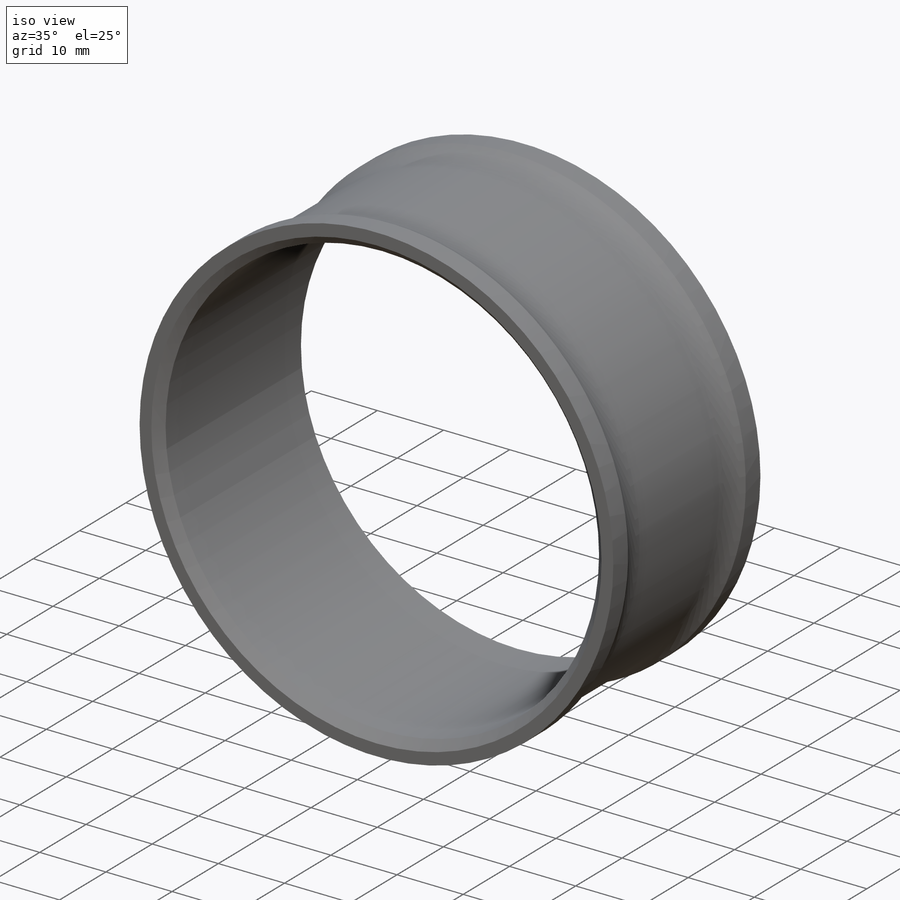
[diagram: iso view]
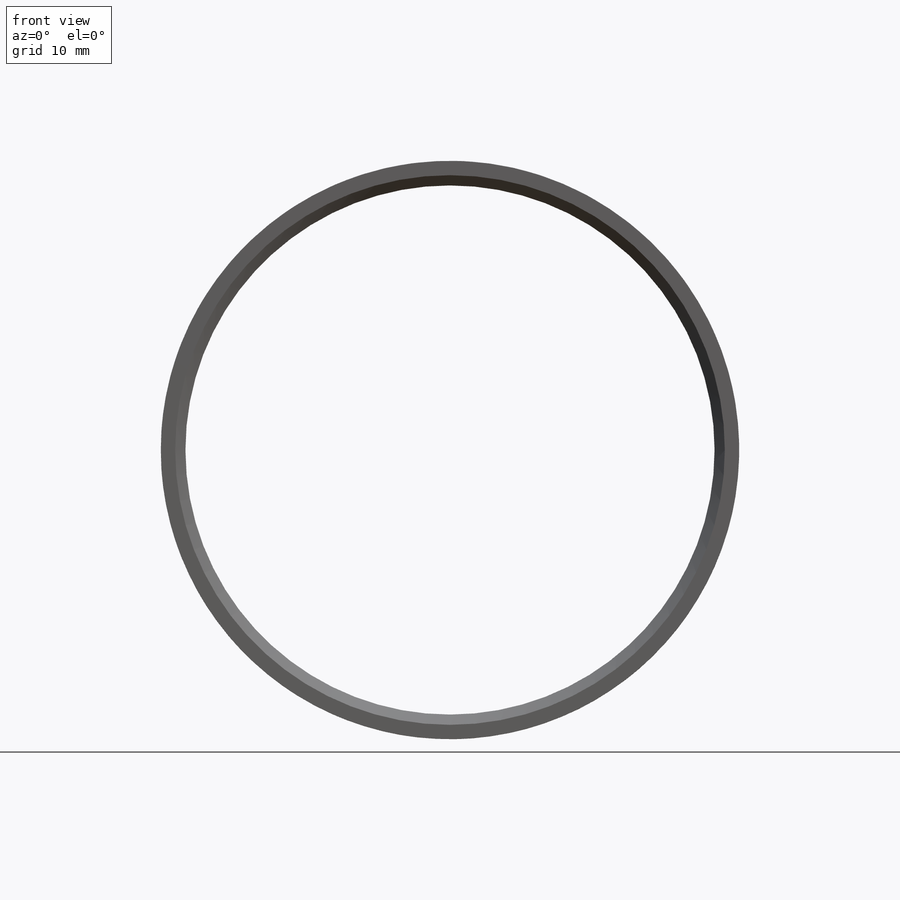
[diagram: front view]
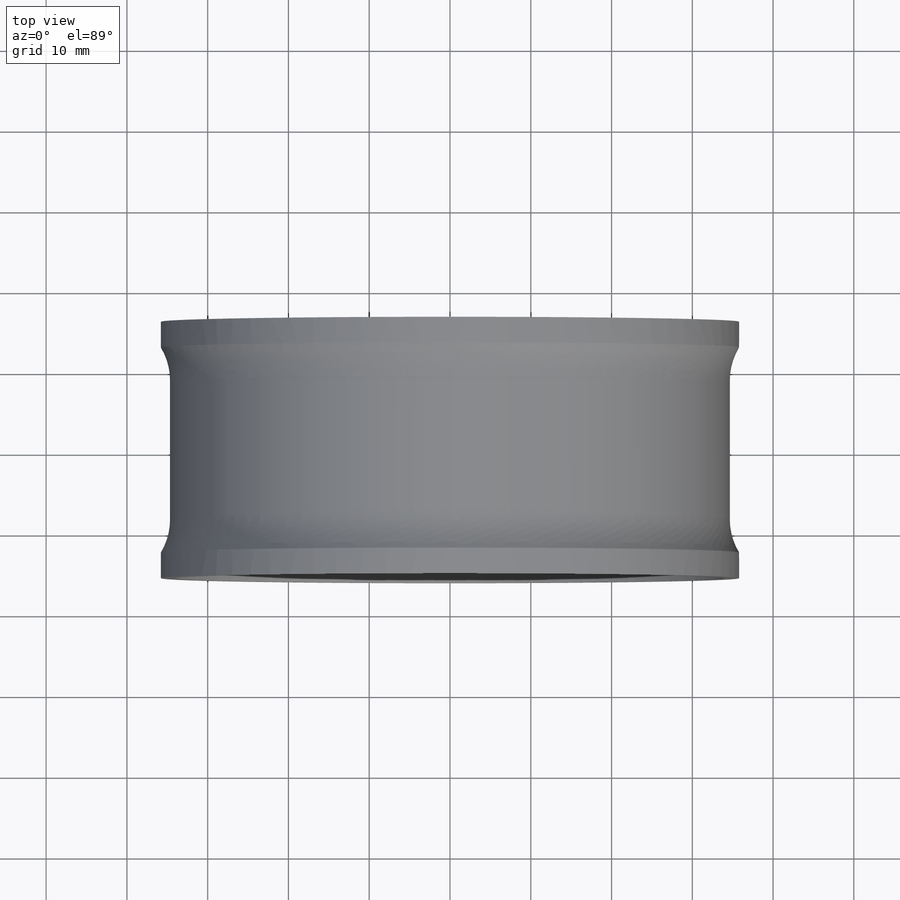
[diagram: top view]
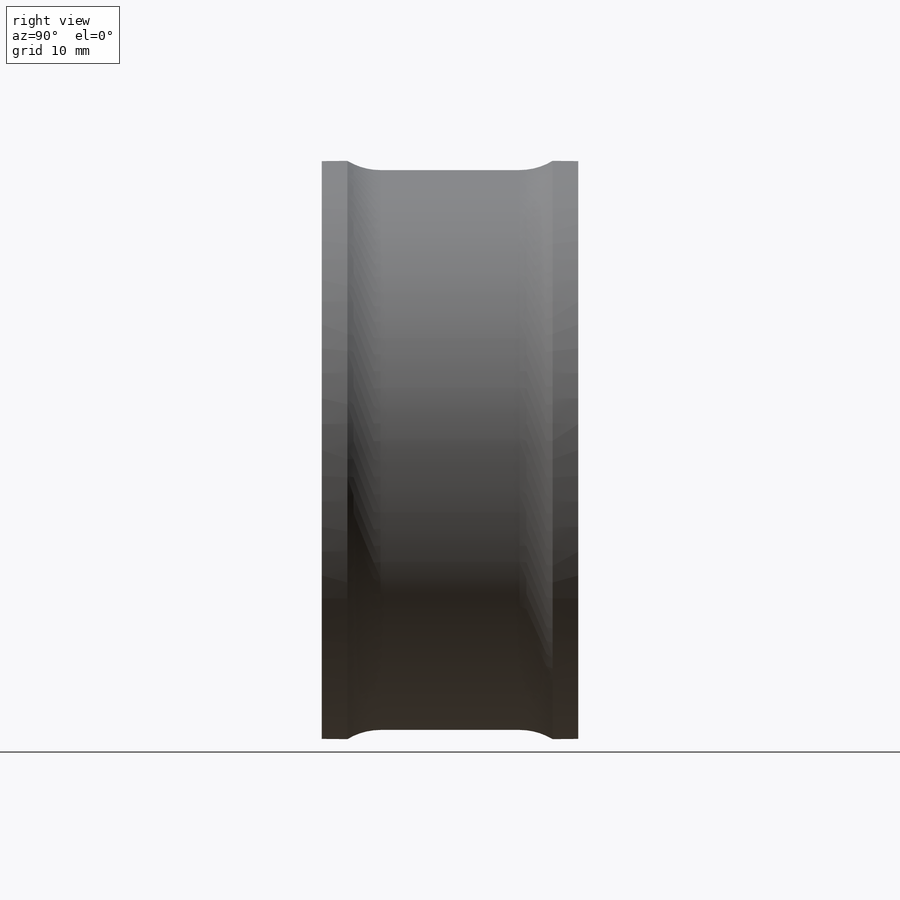
[diagram: right view]
SOLIDWORKS PART (.sldprt)
format: sldprt  version: not decoded by parser v0  size: 419,328 bytes
history: native  units: mm
features: sketch x5, cut_extrude x2, pattern_circular x2, material x1, extrude x1, chamfer x1, cut_revolve x1 (+17 scaffold rows collapsed; 1 parser-record rows omitted)
feature tree (31):
  scaffold x17  (default folders/planes/origin — collapsed)
  material  "6061-T6 (SS)"
  sketch  "Sketch1"  dims[c1.D1=65.1778mm c1.D2=71.6026mm c2.D1=65.0mm c2.D3=0.254mm]
  extrude  "Boss-Extrude1"  Depth=31.75mm
  chamfer  "Chamfer1"  Distance=1.27mm Angle=45deg
  sketch  "Sketch6"  dims[D2=7.9375mm D1=1.905mm D3=3.175mm]
  cut_revolve  "Cut-Revolve2"  Angle=360deg
  sketch  "Sketch3"  dims[D2=3.175mm D1=3.175mm]
  cut_extrude  "Cut-Extrude1"  [1 undecoded]
  pattern_circular  "CirPattern1"  Count=19 Angle=360deg
  sketch  "Sketch7"  dims[D1=63.5mm D2=76.2mm]
  parser-record x1  (decoder bookkeeping rows leaked as tree rows — omitted from the tree; the rows remain in map.json)
  sketch  "Sketch8"  dims[c1.D1=19.05mm c2.D1=15.0deg]
  cut_extrude  "Cut-Extrude2"  [1 undecoded]
  pattern_circular  "CirPattern2"  Count=18 Angle=360deg
decode coverage: 10 of 12 modeling features carry decoded parameters
note: 2 parameter values undecoded
note: suppression state not decoded; provenance and decode notes live in map.json
